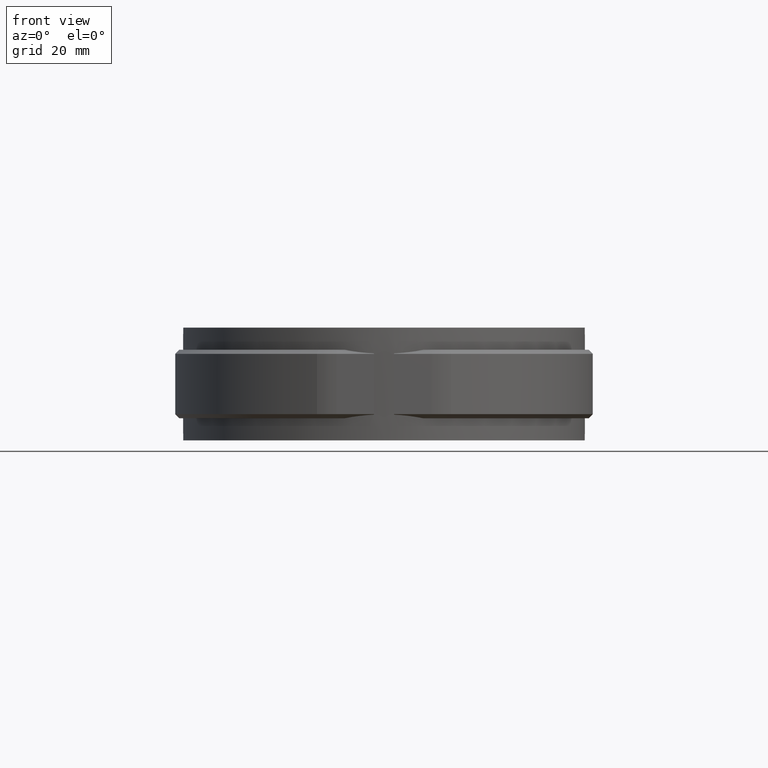
[diagram: clean part render]
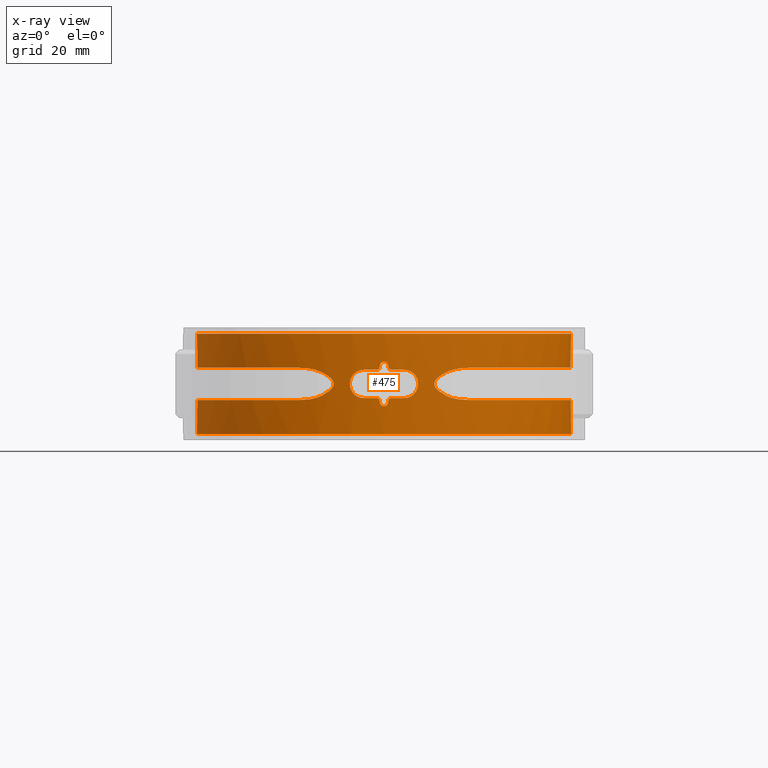
[diagram: x-ray — body ghosted, one internal face saturated and labeled with its STEP entity id]
A machine part, front view, then the same camera in x-ray: the body is ghosted and one INTERNAL B-rep face — a face not visible from any outside direction — is saturated and labeled: STEP entity #475.
In plain terms, the highlighted cylindrical surface (partial cylindrical patch) has radius 46.5 mm, axis along (0, 0, 1).
Its self-contained STEP definition (entity closure, byte-faithful):
#475 = ADVANCED_FACE( '', ( #871, #872 ), #873, .F. );
#871 = FACE_OUTER_BOUND( '', #1761, .T. );
#872 = FACE_BOUND( '', #1762, .T. );
#873 = CYLINDRICAL_SURFACE( '', #1763, 46.5000000000000 );
#1761 = EDGE_LOOP( '', ( #3415, #3416, #3417, #3418, #3419, #3420, #3421, #3422, #3423, #3424, #3425, #3426, #3427, #3428, #3429, #3430 ) );
#1762 = EDGE_LOOP( '', ( #3431, #3432, #3433, #3434, #3435, #3436, #3437, #3438, #3439, #3440, #3441, #3442, #3443, #3444, #3445, #3446 ) );
#1763 = AXIS2_PLACEMENT_3D( '', #3447, #3448, #3449 );
#3415 = ORIENTED_EDGE( '', *, *, #7668, .F. );
#3416 = ORIENTED_EDGE( '', *, *, #7669, .F. );
#3417 = ORIENTED_EDGE( '', *, *, #7670, .T. );
#3418 = ORIENTED_EDGE( '', *, *, #7651, .T. );
#3419 = ORIENTED_EDGE( '', *, *, #7671, .T. );
#3420 = ORIENTED_EDGE( '', *, *, #7672, .T. );
#3421 = ORIENTED_EDGE( '', *, *, #7673, .T. );
#3422 = ORIENTED_EDGE( '', *, *, #7674, .T. );
#3423 = ORIENTED_EDGE( '', *, *, #7675, .T. );
#3424 = ORIENTED_EDGE( '', *, *, #7649, .T. );
#3425 = ORIENTED_EDGE( '', *, *, #7602, .F. );
#3426 = ORIENTED_EDGE( '', *, *, #7676, .F. );
#3427 = ORIENTED_EDGE( '', *, *, #7677, .F. );
#3428 = ORIENTED_EDGE( '', *, *, #7678, .F. );
#3429 = ORIENTED_EDGE( '', *, *, #7679, .F. );
#3430 = ORIENTED_EDGE( '', *, *, #7680, .F. );
#3431 = ORIENTED_EDGE( '', *, *, #7681, .F. );
#3432 = ORIENTED_EDGE( '', *, *, #7682, .F. );
#3433 = ORIENTED_EDGE( '', *, *, #7683, .F. );
#3434 = ORIENTED_EDGE( '', *, *, #7684, .F. );
#3435 = ORIENTED_EDGE( '', *, *, #7685, .F. );
#3436 = ORIENTED_EDGE( '', *, *, #7686, .F. );
#3437 = ORIENTED_EDGE( '', *, *, #7658, .F. );
#3438 = ORIENTED_EDGE( '', *, *, #7653, .F. );
#3439 = ORIENTED_EDGE( '', *, *, #7656, .F. );
#3440 = ORIENTED_EDGE( '', *, *, #7665, .F. );
#3441 = ORIENTED_EDGE( '', *, *, #7660, .F. );
#3442 = ORIENTED_EDGE( '', *, *, #7663, .F. );
#3443 = ORIENTED_EDGE( '', *, *, #7666, .F. );
#3444 = ORIENTED_EDGE( '', *, *, #7687, .F. );
#3445 = ORIENTED_EDGE( '', *, *, #7688, .F. );
#3446 = ORIENTED_EDGE( '', *, *, #7689, .F. );
#3447 = CARTESIAN_POINT( '', ( 0.000000000000000, 0.000000000000000, -12.5000000000000 ) );
#3448 = DIRECTION( '', ( 0.000000000000000, 0.000000000000000, 1.00000000000000 ) );
#3449 = DIRECTION( '', ( -1.00000000000000, 6.16283340149655E-017, 0.000000000000000 ) );
#7602 = EDGE_CURVE( '', #8615, #8617, #8618, .T. );
#7649 = EDGE_CURVE( '', #8704, #8617, #8705, .T. );
#7651 = EDGE_CURVE( '', #8708, #8706, #8709, .T. );
#7653 = EDGE_CURVE( '', #8711, #8712, #8713, .T. );
#7656 = EDGE_CURVE( '', #8716, #8711, #8717, .T. );
#7658 = EDGE_CURVE( '', #8712, #8719, #8720, .F. );
#7660 = EDGE_CURVE( '', #8722, #8723, #8724, .F. );
#7663 = EDGE_CURVE( '', #8727, #8722, #8728, .T. );
#7665 = EDGE_CURVE( '', #8723, #8716, #8730, .T. );
#7666 = EDGE_CURVE( '', #8731, #8727, #8732, .T. );
#7668 = EDGE_CURVE( '', #8734, #8735, #8736, .T. );
#7669 = EDGE_CURVE( '', #8737, #8734, #8738, .T. );
#7670 = EDGE_CURVE( '', #8737, #8708, #8739, .T. );
#7671 = EDGE_CURVE( '', #8706, #8740, #8741, .T. );
#7672 = EDGE_CURVE( '', #8740, #8742, #8743, .T. );
#7673 = EDGE_CURVE( '', #8742, #8744, #8745, .T. );
#7674 = EDGE_CURVE( '', #8744, #8746, #8747, .T. );
#7675 = EDGE_CURVE( '', #8746, #8704, #8748, .T. );
#7676 = EDGE_CURVE( '', #8749, #8615, #8750, .T. );
#7677 = EDGE_CURVE( '', #8751, #8749, #8752, .T. );
#7678 = EDGE_CURVE( '', #8753, #8751, #8754, .T. );
#7679 = EDGE_CURVE( '', #8755, #8753, #8756, .T. );
#7680 = EDGE_CURVE( '', #8735, #8755, #8757, .T. );
#7681 = EDGE_CURVE( '', #8758, #8759, #8760, .T. );
#7682 = EDGE_CURVE( '', #8761, #8758, #8762, .T. );
#7683 = EDGE_CURVE( '', #8763, #8761, #8764, .F. );
#7684 = EDGE_CURVE( '', #8765, #8763, #8766, .T. );
#7685 = EDGE_CURVE( '', #8767, #8765, #8768, .T. );
#7686 = EDGE_CURVE( '', #8719, #8767, #8769, .T. );
#7687 = EDGE_CURVE( '', #8770, #8731, #8771, .T. );
#7688 = EDGE_CURVE( '', #8772, #8770, #8773, .F. );
#7689 = EDGE_CURVE( '', #8759, #8772, #8774, .T. );
#8615 = VERTEX_POINT( '', #10290 );
#8617 = VERTEX_POINT( '', #10292 );
#8618 = CIRCLE( '', #10293, 46.5000000000000 );
#8704 = VERTEX_POINT( '', #10850 );
#8705 = LINE( '', #10851, #10852 );
#8706 = VERTEX_POINT( '', #10853 );
#8708 = VERTEX_POINT( '', #10886 );
#8709 = LINE( '', #10887, #10888 );
#8711 = VERTEX_POINT( '', #10890 );
#8712 = VERTEX_POINT( '', #10891 );
#8713 = ELLIPSE( '', #10892, 211.833441394427, 46.5000000000000 );
#8716 = VERTEX_POINT( '', #10897 );
#8717 = B_SPLINE_CURVE_WITH_KNOTS( '', 3, ( #10898, #10899, #10900, #10901, #10902, #10903, #10904, #10905, #10906, #10907 ), .UNSPECIFIED., .F., .F., ( 4, 2, 2, 2, 4 ), ( 1.08420217248550E-019, 0.000671567837454007, 0.00134313567490801, 0.00201470351236202, 0.00268627134981603 ), .UNSPECIFIED. );
#8719 = VERTEX_POINT( '', #10910 );
#8720 = B_SPLINE_CURVE_WITH_KNOTS( '', 3, ( #10911, #10912, #10913, #10914, #10915, #10916 ), .UNSPECIFIED., .F., .F., ( 4, 2, 4 ), ( 0.000671855508561978, 0.00100772632349601, 0.00134359713843005 ), .UNSPECIFIED. );
#8722 = VERTEX_POINT( '', #10919 );
#8723 = VERTEX_POINT( '', #10920 );
#8724 = B_SPLINE_CURVE_WITH_KNOTS( '', 3, ( #10921, #10922, #10923, #10924, #10925, #10926 ), .UNSPECIFIED., .F., .F., ( 4, 2, 4 ), ( 5.44594392808031E-011, 0.000335865367463993, 0.000671730680468546 ), .UNSPECIFIED. );
#8727 = VERTEX_POINT( '', #10931 );
#8728 = CIRCLE( '', #10932, 46.5000000000000 );
#8730 = ELLIPSE( '', #10935, 211.833549455614, 46.5000000000000 );
#8731 = VERTEX_POINT( '', #10936 );
#8732 = B_SPLINE_CURVE_WITH_KNOTS( '', 3, ( #10937, #10938, #10939, #10940, #10941, #10942, #10943, #10944, #10945, #10946, #10947, #10948, #10949, #10950, #10951, #10952, #10953, #10954, #10955, #10956, #10957, #10958, #10959, #10960, #10961, #10962, #10963, #10964, #10965, #10966, #10967, #10968, #10969, #10970 ), .UNSPECIFIED., .F., .F., ( 4, 2, 2, 2, 2, 2, 2, 2, 2, 2, 2, 2, 2, 2, 2, 2, 4 ), ( 4.42269442734662E-018, 0.000687142138066847, 0.00137428427613369, 0.00206142641420053, 0.00274856855226737, 0.00343571069033422, 0.00412285282840106, 0.00480999496646790, 0.00549713710453475, 0.00618427924260159, 0.00687142138066844, 0.00755856351873528, 0.00824570565680212, 0.00893284779486896, 0.00961998993293581, 0.0103071320710027, 0.0109942742090695 ), .UNSPECIFIED. );
#8734 = VERTEX_POINT( '', #10973 );
#8735 = VERTEX_POINT( '', #10974 );
#8736 = B_SPLINE_CURVE_WITH_KNOTS( '', 3, ( #10975, #10976, #10977, #10978, #10979, #10980, #10981, #10982, #10983, #10984, #10985, #10986, #10987, #10988, #10989, #10990, #10991, #10992, #10993, #10994, #10995, #10996, #10997, #10998, #10999, #11000, #11001, #11002, #11003, #11004, #11005, #11006, #11007, #11008, #11009, #11010, #11011, #11012, #11013, #11014, #11015, #11016, #11017, #11018, #11019, #11020, #11021, #11022, #11023, #11024, #11025, #11026, #11027, #11028, #11029, #11030 ), .UNSPECIFIED., .F., .F., ( 4, 2, 2, 2, 2, 2, 2, 2, 2, 2, 2, 2, 2, 2, 2, 2, 2, 2, 2, 2, 2, 2, 2, 2, 2, 2, 2, 4 ), ( 2.60930321732885E-017, 0.00738281492453087, 0.00922851865566358, 0.0110742223867963, 0.0147656298490617, 0.0221484447735926, 0.0258398522358580, 0.0295312596981235, 0.0369140746226543, 0.0406054820849198, 0.0424511858160525, 0.0442968895471852, 0.0516797044717162, 0.0553711119339817, 0.0590625193962471, 0.0664453343207781, 0.0701367417830436, 0.0719824455141763, 0.0738281492453090, 0.0812109641698400, 0.0885937790943709, 0.0922851865566364, 0.0959765940189019, 0.103359408943433, 0.105205112674566, 0.107050816405698, 0.110742223867964, 0.118125038792495 ), .UNSPECIFIED. );
#8737 = VERTEX_POINT( '', #11031 );
#8738 = LINE( '', #11032, #11033 );
#8739 = CIRCLE( '', #11034, 46.5000000000000 );
#8740 = VERTEX_POINT( '', #11035 );
#8741 = B_SPLINE_CURVE_WITH_KNOTS( '', 3, ( #11036, #11037, #11038, #11039, #11040, #11041, #11042, #11043, #11044, #11045, #11046, #11047, #11048, #11049, #11050, #11051, #11052, #11053, #11054, #11055, #11056, #11057, #11058, #11059, #11060, #11061, #11062, #11063, #11064, #11065, #11066, #11067, #11068, #11069, #11070, #11071, #11072, #11073, #11074, #11075, #11076, #11077, #11078, #11079, #11080, #11081, #11082, #11083, #11084, #11085, #11086, #11087, #11088, #11089, #11090, #11091 ), .UNSPECIFIED., .F., .F., ( 4, 2, 2, 2, 2, 2, 2, 2, 2, 2, 2, 2, 2, 2, 2, 2, 2, 2, 2, 2, 2, 2, 2, 2, 2, 2, 2, 4 ), ( 1.27123987728551E-016, 0.00738276158582449, 0.00922845198228058, 0.0110741423787367, 0.0147655231716488, 0.0221482847574732, 0.0258396655503854, 0.0295310463432975, 0.0369138079291218, 0.0406051887220340, 0.0424508791184901, 0.0442965695149462, 0.0516793311007705, 0.0553707118936826, 0.0590620926865948, 0.0664448542724191, 0.0701362350653312, 0.0719819254617873, 0.0738276158582434, 0.0812103774440677, 0.0885931390298920, 0.0922845198228042, 0.0959759006157163, 0.103358662201541, 0.105204352597997, 0.107050042994453, 0.110741423787365, 0.118124185373189 ), .UNSPECIFIED. );
#8742 = VERTEX_POINT( '', #11092 );
#8743 = B_SPLINE_CURVE_WITH_KNOTS( '', 3, ( #11093, #11094, #11095, #11096, #11097, #11098, #11099, #11100, #11101, #11102 ), .UNSPECIFIED., .F., .F., ( 4, 2, 2, 2, 4 ), ( 0.000000000000000, 0.00149796902133167, 0.00299593804266334, 0.00449390706399502, 0.00599187608532669 ), .UNSPECIFIED. );
#8744 = VERTEX_POINT( '', #11103 );
#8745 = B_SPLINE_CURVE_WITH_KNOTS( '', 3, ( #11104, #11105, #11106, #11107, #11108, #11109, #11110, #11111, #11112, #11113, #11114, #11115, #11116, #11117, #11118, #11119, #11120, #11121, #11122, #11123, #11124, #11125, #11126, #11127, #11128, #11129, #11130, #11131, #11132, #11133 ), .UNSPECIFIED., .F., .F., ( 4, 2, 2, 2, 2, 2, 2, 2, 2, 2, 2, 2, 2, 2, 4 ), ( 4.33680868994202E-018, 0.00111899603695362, 0.00223799207390723, 0.00279749009238404, 0.00335698811086084, 0.00391648612933765, 0.00419623513857605, 0.00447598414781445, 0.00475573315705285, 0.00503548216629125, 0.00559498018476805, 0.00615447820324485, 0.00671397622172165, 0.00783297225867525, 0.00895196829562885 ), .UNSPECIFIED. );
#8746 = VERTEX_POINT( '', #11134 );
#8747 = B_SPLINE_CURVE_WITH_KNOTS( '', 3, ( #11135, #11136, #11137, #11138, #11139, #11140, #11141, #11142, #11143, #11144 ), .UNSPECIFIED., .F., .F., ( 4, 2, 2, 2, 4 ), ( 0.000000000000000, 0.00149665212957565, 0.00299330425915131, 0.00448995638872696, 0.00598660851830262 ), .UNSPECIFIED. );
#8748 = B_SPLINE_CURVE_WITH_KNOTS( '', 3, ( #11145, #11146, #11147, #11148, #11149, #11150, #11151, #11152, #11153, #11154, #11155, #11156, #11157, #11158, #11159, #11160, #11161, #11162, #11163, #11164, #11165, #11166, #11167, #11168, #11169, #11170, #11171, #11172, #11173, #11174, #11175, #11176, #11177, #11178, #11179, #11180, #11181, #11182, #11183, #11184, #11185, #11186, #11187, #11188, #11189, #11190, #11191, #11192, #11193, #11194, #11195, #11196, #11197, #11198, #11199, #11200 ), .UNSPECIFIED., .F., .F., ( 4, 2, 2, 2, 2, 2, 2, 2, 2, 2, 2, 2, 2, 2, 2, 2, 2, 2, 2, 2, 2, 2, 2, 2, 2, 2, 2, 4 ), ( 0.000000000000000, 0.00738276103454595, 0.00922845129318243, 0.0110741415518189, 0.0147655220690919, 0.0221482831036379, 0.0258396636209108, 0.0295310441381838, 0.0369138051727298, 0.0406051856900028, 0.0424508759486393, 0.0442965662072758, 0.0516793272418217, 0.0553707077590947, 0.0590620882763677, 0.0664448493109137, 0.0701362298281866, 0.0719819200868231, 0.0738276103454596, 0.0812103713800056, 0.0885931324145516, 0.0922845129318246, 0.0959758934490976, 0.103358654483644, 0.105204344742280, 0.107050035000917, 0.110741415518190, 0.118124176552736 ), .UNSPECIFIED. );
#8749 = VERTEX_POINT( '', #11201 );
#8750 = LINE( '', #11202, #11203 );
#8751 = VERTEX_POINT( '', #11204 );
#8752 = B_SPLINE_CURVE_WITH_KNOTS( '', 3, ( #11205, #11206, #11207, #11208, #11209, #11210, #11211, #11212, #11213, #11214, #11215, #11216, #11217, #11218, #11219, #11220, #11221, #11222, #11223, #11224, #11225, #11226, #11227, #11228, #11229, #11230, #11231, #11232, #11233, #11234, #11235, #11236, #11237, #11238, #11239, #11240, #11241, #11242, #11243, #11244, #11245, #11246, #11247, #11248, #11249, #11250, #11251, #11252, #11253, #11254, #11255, #11256, #11257, #11258, #11259, #11260 ), .UNSPECIFIED., .F., .F., ( 4, 2, 2, 2, 2, 2, 2, 2, 2, 2, 2, 2, 2, 2, 2, 2, 2, 2, 2, 2, 2, 2, 2, 2, 2, 2, 2, 4 ), ( 4.04603565571184E-017, 0.00738277436989267, 0.00922846796236583, 0.0110741615548390, 0.0147655487397853, 0.0221483231096779, 0.0258397102946242, 0.0295310974795706, 0.0369138718494632, 0.0406052590344095, 0.0424509526268827, 0.0442966462193558, 0.0516794205892485, 0.0553708077741948, 0.0590621949591411, 0.0664449693290337, 0.0701363565139800, 0.0719820501064532, 0.0738277436989263, 0.0812105180688190, 0.0885932924387116, 0.0922846796236579, 0.0959760668086042, 0.103358841178497, 0.105204534770970, 0.107050228363443, 0.110741615548389, 0.118124389918282 ), .UNSPECIFIED. );
#8753 = VERTEX_POINT( '', #11261 );
#8754 = B_SPLINE_CURVE_WITH_KNOTS( '', 3, ( #11262, #11263, #11264, #11265, #11266, #11267, #11268, #11269, #11270, #11271 ), .UNSPECIFIED., .F., .F., ( 4, 2, 2, 2, 4 ), ( 0.000000000000000, 0.00149635626450207, 0.00299271252900415, 0.00448906879350622, 0.00598542505800829 ), .UNSPECIFIED. );
#8755 = VERTEX_POINT( '', #11272 );
#8756 = B_SPLINE_CURVE_WITH_KNOTS( '', 3, ( #11273, #11274, #11275, #11276, #11277, #11278, #11279, #11280, #11281, #11282, #11283, #11284, #11285, #11286, #11287, #11288, #11289, #11290, #11291, #11292, #11293, #11294, #11295, #11296, #11297, #11298, #11299, #11300, #11301, #11302 ), .UNSPECIFIED., .F., .F., ( 4, 2, 2, 2, 2, 2, 2, 2, 2, 2, 2, 2, 2, 2, 4 ), ( 0.000000000000000, 0.00111931711138644, 0.00223863422277289, 0.00279829277846611, 0.00335795133415932, 0.00391760988985254, 0.00419743916769915, 0.00447726844554576, 0.00475709772339237, 0.00503692700123898, 0.00559658555693220, 0.00615624411262541, 0.00671590266831863, 0.00783521977970507, 0.00895453689109151 ), .UNSPECIFIED. );
#8757 = B_SPLINE_CURVE_WITH_KNOTS( '', 3, ( #11303, #11304, #11305, #11306, #11307, #11308, #11309, #11310, #11311, #11312 ), .UNSPECIFIED., .F., .F., ( 4, 2, 2, 2, 4 ), ( 3.46944695195361E-018, 0.00149740317680330, 0.00299480635360661, 0.00449220953040991, 0.00598961270721321 ), .UNSPECIFIED. );
#8758 = VERTEX_POINT( '', #11313 );
#8759 = VERTEX_POINT( '', #11314 );
#8760 = B_SPLINE_CURVE_WITH_KNOTS( '', 3, ( #11315, #11316, #11317, #11318, #11319, #11320, #11321, #11322, #11323, #11324 ), .UNSPECIFIED., .F., .F., ( 4, 2, 2, 2, 4 ), ( 1.08420217248550E-019, 0.000671567837454002, 0.00134313567490800, 0.00201470351236201, 0.00268627134981601 ), .UNSPECIFIED. );
#8761 = VERTEX_POINT( '', #11325 );
#8762 = ELLIPSE( '', #11326, 211.833549455568, 46.5000000000000 );
#8763 = VERTEX_POINT( '', #11327 );
#8764 = B_SPLINE_CURVE_WITH_KNOTS( '', 3, ( #11328, #11329, #11330, #11331, #11332, #11333 ), .UNSPECIFIED., .F., .F., ( 4, 2, 4 ), ( 0.00156373278591128, 0.00189959779974501, 0.00223546281357875 ), .UNSPECIFIED. );
#8765 = VERTEX_POINT( '', #11334 );
#8766 = CIRCLE( '', #11335, 46.5000000000000 );
#8767 = VERTEX_POINT( '', #11336 );
#8768 = B_SPLINE_CURVE_WITH_KNOTS( '', 3, ( #11337, #11338, #11339, #11340, #11341, #11342, #11343, #11344, #11345, #11346, #11347, #11348, #11349, #11350, #11351, #11352, #11353, #11354, #11355, #11356, #11357, #11358, #11359, #11360, #11361, #11362, #11363, #11364, #11365, #11366, #11367, #11368, #11369, #11370 ), .UNSPECIFIED., .F., .F., ( 4, 2, 2, 2, 2, 2, 2, 2, 2, 2, 2, 2, 2, 2, 2, 2, 4 ), ( 1.78811203067275E-018, 0.000687142138066849, 0.00137428427613370, 0.00206142641420054, 0.00274856855226739, 0.00343571069033424, 0.00412285282840109, 0.00480999496646793, 0.00549713710453478, 0.00618427924260163, 0.00687142138066848, 0.00755856351873533, 0.00824570565680217, 0.00893284779486902, 0.00961998993293587, 0.0103071320710027, 0.0109942742090696 ), .UNSPECIFIED. );
#8769 = CIRCLE( '', #11371, 46.5000000000000 );
#8770 = VERTEX_POINT( '', #11372 );
#8771 = CIRCLE( '', #11373, 46.5000000000000 );
#8772 = VERTEX_POINT( '', #11374 );
#8773 = B_SPLINE_CURVE_WITH_KNOTS( '', 3, ( #11375, #11376, #11377, #11378, #11379, #11380 ), .UNSPECIFIED., .F., .F., ( 4, 2, 4 ), ( 0.00223559787351831, 0.00257146803799823, 0.00290733820247816 ), .UNSPECIFIED. );
#8774 = ELLIPSE( '', #11381, 211.833441394412, 46.5000000000000 );
#10290 = CARTESIAN_POINT( '', ( 6.57575757575756, 46.0326993810364, 12.5000000000000 ) );
#10292 = CARTESIAN_POINT( '', ( -6.57575757575755, 46.0326993810364, 12.5000000000000 ) );
#10293 = AXIS2_PLACEMENT_3D( '', #14658, #14659, #14660 );
#10850 = CARTESIAN_POINT( '', ( -6.57575757575753, 46.0326993810364, 3.99548083261022 ) );
#10851 = CARTESIAN_POINT( '', ( -6.57575757575753, 46.0326993810364, -12.5000000000000 ) );
#10852 = VECTOR( '', #14714, 1000.00000000000 );
#10853 = CARTESIAN_POINT( '', ( -6.57575757575739, 46.0326993810364, -3.99548083260763 ) );
#10886 = CARTESIAN_POINT( '', ( -6.57575757575755, 46.0326993810364, -12.5000000000000 ) );
#10887 = CARTESIAN_POINT( '', ( -6.57575757575753, 46.0326993810364, -12.5000000000000 ) );
#10888 = VECTOR( '', #14715, 1000.00000000000 );
#10890 = CARTESIAN_POINT( '', ( 0.975609757981828, -46.4897643100084, 4.71951218674745 ) );
#10891 = CARTESIAN_POINT( '', ( 1.16219499999999, -46.4854741051651, 3.89024400000000 ) );
#10892 = AXIS2_PLACEMENT_3D( '', #14719, #14720, #14721 );
#10897 = CARTESIAN_POINT( '', ( -0.975610000000002, -46.4897643049295, 4.71951200000000 ) );
#10898 = CARTESIAN_POINT( '', ( -0.975610000000001, -46.4897643049295, 4.71951200000000 ) );
#10899 = CARTESIAN_POINT( '', ( -0.925763808986531, -46.4908103511537, 4.94105073461265 ) );
#10900 = CARTESIAN_POINT( '', ( -0.802006509600707, -46.4934213540496, 5.13901837185373 ) );
#10901 = CARTESIAN_POINT( '', ( -0.447391385286102, -46.4981858204705, 5.42271324366220 ) );
#10902 = CARTESIAN_POINT( '', ( -0.227079159237838, -46.5000000006669, 5.50000005715017 ) );
#10903 = CARTESIAN_POINT( '', ( 0.227079432346515, -46.4999999993331, 5.49999994971700 ) );
#10904 = CARTESIAN_POINT( '', ( 0.447400224408896, -46.4981857168814, 5.42270756787861 ) );
#10905 = CARTESIAN_POINT( '', ( 0.802005625356060, -46.4934213507598, 5.13901736363283 ) );
#10906 = CARTESIAN_POINT( '', ( 0.925763524349837, -46.4908103568673, 4.94105091276290 ) );
#10907 = CARTESIAN_POINT( '', ( 0.975609757981827, -46.4897643100084, 4.71951218674745 ) );
#10910 = CARTESIAN_POINT( '', ( 1.64999999892706, -46.4707165858623, 3.49999999999999 ) );
#10911 = CARTESIAN_POINT( '', ( 1.64999999892705, -46.4707165858623, 3.49999999999999 ) );
#10912 = CARTESIAN_POINT( '', ( 1.53650901613434, -46.4747462229165, 3.49999999975644 ) );
#10913 = CARTESIAN_POINT( '', ( 1.42636351351477, -46.4782030087271, 3.53861432713445 ) );
#10914 = CARTESIAN_POINT( '', ( 1.24903577308870, -46.4833064382330, 3.68044133338710 ) );
#10915 = CARTESIAN_POINT( '', ( 1.18712329770316, -46.4848508665404, 3.77945156354335 ) );
#10916 = CARTESIAN_POINT( '', ( 1.16219499999999, -46.4854741051651, 3.89024400000000 ) );
#10919 = CARTESIAN_POINT( '', ( -1.65000000000002, -46.4707165858242, 3.50000000000000 ) );
#10920 = CARTESIAN_POINT( '', ( -1.16219510888263, -46.4854741024429, 3.89024396052175 ) );
#10921 = CARTESIAN_POINT( '', ( -1.16219509675616, -46.4854741027461, 3.89024401441720 ) );
#10922 = CARTESIAN_POINT( '', ( -1.18712410211090, -46.4848508463773, 3.77944831630140 ) );
#10923 = CARTESIAN_POINT( '', ( -1.24903564416893, -46.4833064381437, 3.68044224278561 ) );
#10924 = CARTESIAN_POINT( '', ( -1.42635966188042, -46.4782031233753, 3.53861667346047 ) );
#10925 = CARTESIAN_POINT( '', ( -1.53651254375999, -46.4747460976664, 3.50000000000001 ) );
#10926 = CARTESIAN_POINT( '', ( -1.65000000000002, -46.4707165858242, 3.50000000000001 ) );
#10931 = CARTESIAN_POINT( '', ( -4.99999999999995, -46.2304012528553, 3.50000000000000 ) );
#10932 = AXIS2_PLACEMENT_3D( '', #14728, #14729, #14730 );
#10935 = AXIS2_PLACEMENT_3D( '', #14732, #14733, #14734 );
#10936 = CARTESIAN_POINT( '', ( -4.99999999999995, -46.2304012528553, -3.49999999999999 ) );
#10937 = CARTESIAN_POINT( '', ( -4.99999999999996, -46.2304012528552, -3.49999999999999 ) );
#10938 = CARTESIAN_POINT( '', ( -5.23101385738080, -46.2054161942012, -3.49999999999999 ) );
#10939 = CARTESIAN_POINT( '', ( -5.45798571758385, -46.1791179024730, -3.47735425239128 ) );
#10940 = CARTESIAN_POINT( '', ( -5.90423219293596, -46.1241865029157, -3.38882098308433 ) );
#10941 = CARTESIAN_POINT( '', ( -6.12575133543462, -46.0952352981939, -3.32190071304826 ) );
#10942 = CARTESIAN_POINT( '', ( -6.54860201801553, -46.0370650479490, -3.14708948178815 ) );
#10943 = CARTESIAN_POINT( '', ( -6.74912385589546, -46.0080010893712, -3.04015286593942 ) );
#10944 = CARTESIAN_POINT( '', ( -7.12868562455497, -45.9507201067411, -2.78759057670871 ) );
#10945 = CARTESIAN_POINT( '', ( -7.30867678819304, -45.9223259867691, -2.64045333686759 ) );
#10946 = CARTESIAN_POINT( '', ( -7.63172027521371, -45.8697463048386, -2.31862690606866 ) );
#10947 = CARTESIAN_POINT( '', ( -7.77678357822314, -45.8452676755266, -2.14297085075285 ) );
#10948 = CARTESIAN_POINT( '', ( -8.03323438727723, -45.8010270227893, -1.76134614976869 ) );
#10949 = CARTESIAN_POINT( '', ( -8.14288594457704, -45.7815615739906, -1.55706978496352 ) );
#10950 = CARTESIAN_POINT( '', ( -8.31863462380287, -45.7499539852790, -1.13528085052246 ) );
#10951 = CARTESIAN_POINT( '', ( -8.38623678321872, -45.7375466786688, -0.914928350754904 ) );
#10952 = CARTESIAN_POINT( '', ( -8.47729911745199, -45.7207561534240, -0.460526097855708 ) );
#10953 = CARTESIAN_POINT( '', ( -8.49980270042236, -45.7165544862432, -0.232270415757349 ) );
#10954 = CARTESIAN_POINT( '', ( -8.50019474131339, -45.7164815947105, 0.226285794520531 ) );
#10955 = CARTESIAN_POINT( '', ( -8.47736440232366, -45.7207434989937, 0.459166104156033 ) );
#10956 = CARTESIAN_POINT( '', ( -8.38737612003103, -45.7373372107700, 0.910263543814192 ) );
#10957 = CARTESIAN_POINT( '', ( -8.32081009890212, -45.7495588395359, 1.12918788445466 ) );
#10958 = CARTESIAN_POINT( '', ( -8.14458879543814, -45.7812591358884, 1.55383599487668 ) );
#10959 = CARTESIAN_POINT( '', ( -8.03449376747116, -45.8008027773279, 1.75895861128939 ) );
#10960 = CARTESIAN_POINT( '', ( -7.78037265749609, -45.8446553750566, 2.13813369705887 ) );
#10961 = CARTESIAN_POINT( '', ( -7.63546354454568, -45.8691302098569, 2.31465216576983 ) );
#10962 = CARTESIAN_POINT( '', ( -7.30864861419778, -45.9223373227352, 2.64072420356518 ) );
#10963 = CARTESIAN_POINT( '', ( -7.13209424810787, -45.9501886017669, 2.78494136457533 ) );
#10964 = CARTESIAN_POINT( '', ( -6.75375610242144, -46.0073187592023, 3.03744363242463 ) );
#10965 = CARTESIAN_POINT( '', ( -6.54961183431967, -46.0369208358938, 3.14658533698890 ) );
#10966 = CARTESIAN_POINT( '', ( -6.12700118973033, -46.0950686261736, 3.32147022241109 ) );
#10967 = CARTESIAN_POINT( '', ( -5.90947972749181, -46.1235174520899, 3.38746186619657 ) );
#10968 = CARTESIAN_POINT( '', ( -5.46202872177194, -46.1786428454260, 3.47686363406913 ) );
#10969 = CARTESIAN_POINT( '', ( -5.23101169307605, -46.2054164282793, 3.49999999999999 ) );
#10970 = CARTESIAN_POINT( '', ( -4.99999999999996, -46.2304012528552, 3.49999999999999 ) );
#10973 = CARTESIAN_POINT( '', ( 6.57575757575759, 46.0326993810364, -3.99548083260761 ) );
#10974 = CARTESIAN_POINT( '', ( 20.9197939615486, -41.5284729459034, -3.99747853378867 ) );
#10975 = CARTESIAN_POINT( '', ( 6.57575757575761, 46.0326993810364, -3.99548083260761 ) );
#10976 = CARTESIAN_POINT( '', ( 9.02644560647744, 45.6826193162018, -3.99398102181866 ) );
#10977 = CARTESIAN_POINT( '', ( 11.4281199175665, 45.1411077177509, -3.99298772306722 ) );
#10978 = CARTESIAN_POINT( '', ( 14.3697969989177, 44.2282534686498, -3.99378475511837 ) );
#10979 = CARTESIAN_POINT( '', ( 14.9550935991822, 44.0338139849090, -3.99402548694760 ) );
#10980 = CARTESIAN_POINT( '', ( 16.1195579707052, 43.6209978043481, -3.99462222141533 ) );
#10981 = CARTESIAN_POINT( '', ( 16.6994045729644, 43.4023079986853, -3.99497875479192 ) );
#10982 = CARTESIAN_POINT( '', ( 18.4174429841433, 42.7149810340934, -3.99609124759805 ) );
#10983 = CARTESIAN_POINT( '', ( 19.5378352994174, 42.2139655870495, -3.99690456822734 ) );
#10984 = CARTESIAN_POINT( '', ( 22.8260172442110, 40.5857922413008, -3.99805969679736 ) );
#10985 = CARTESIAN_POINT( '', ( 24.9212545755722, 39.3342662662554, -3.99627866648189 ) );
#10986 = CARTESIAN_POINT( '', ( 27.9180614666933, 37.2066217496728, -3.99468673434178 ) );
#10987 = CARTESIAN_POINT( '', ( 28.8925482019642, 36.4554901388768, -3.99432573404381 ) );
#10988 = CARTESIAN_POINT( '', ( 30.7910723894444, 34.8667744991785, -3.99423936775725 ) );
#10989 = CARTESIAN_POINT( '', ( 31.7022275853344, 34.0399709080273, -3.99451484170614 ) );
#10990 = CARTESIAN_POINT( '', ( 34.3248524586362, 31.4651857909592, -3.99595643506852 ) );
#10991 = CARTESIAN_POINT( '', ( 35.9261464892723, 29.6233961994894, -3.99787806846360 ) );
#10992 = CARTESIAN_POINT( '', ( 38.1084952908390, 26.6737415384165, -3.99719068524409 ) );
#10993 = CARTESIAN_POINT( '', ( 38.7991789354904, 25.6592192141062, -3.99649297409394 ) );
#10994 = CARTESIAN_POINT( '', ( 39.7786160376878, 24.0892540422622, -3.99547777132636 ) );
#10995 = CARTESIAN_POINT( '', ( 40.0961987557810, 23.5568583089422, -3.99514113652332 ) );
#10996 = CARTESIAN_POINT( '', ( 40.7071462935750, 22.4846385046358, -3.99456056532969 ) );
#10997 = CARTESIAN_POINT( '', ( 41.0010355076973, 21.9440625218567, -3.99431605826919 ) );
#10998 = CARTESIAN_POINT( '', ( 42.4134545626993, 19.2191975567037, -3.99344634064606 ) );
#10999 = CARTESIAN_POINT( '', ( 43.3619633462340, 16.9693621125594, -3.99417587506434 ) );
#11000 = CARTESIAN_POINT( '', ( 44.5166103326422, 13.4912446953023, -3.99614859686555 ) );
#11001 = CARTESIAN_POINT( '', ( 44.8565991811639, 12.3145648632108, -3.99689418603296 ) );
#11002 = CARTESIAN_POINT( '', ( 45.4449135023530, 9.92586694619043, -3.99764279258482 ) );
#11003 = CARTESIAN_POINT( '', ( 45.6937109079561, 8.70917143220113, -3.99744717810590 ) );
#11004 = CARTESIAN_POINT( '', ( 46.2888220258071, 5.06502613660511, -3.99582113165904 ) );
#11005 = CARTESIAN_POINT( '', ( 46.4897309576794, 2.62960273250128, -3.99406502112676 ) );
#11006 = CARTESIAN_POINT( '', ( 46.5045624322486, -1.03230167447569, -3.99376585088792 ) );
#11007 = CARTESIAN_POINT( '', ( 46.4615245746229, -2.25440494880702, -3.99399589850282 ) );
#11008 = CARTESIAN_POINT( '', ( 46.3238595087267, -4.08979731571435, -3.99471718962194 ) );
#11009 = CARTESIAN_POINT( '', ( 46.2657722206098, -4.70196811540099, -3.99501657941568 ) );
#11010 = CARTESIAN_POINT( '', ( 46.1248311875601, -5.92706767691072, -3.99566724076215 ) );
#11011 = CARTESIAN_POINT( '', ( 46.0417452325320, -6.54130755607098, -3.99601921706423 ) );
#11012 = CARTESIAN_POINT( '', ( 45.5671047439563, -9.59088644814693, -3.99765040980327 ) );
#11013 = CARTESIAN_POINT( '', ( 44.9989396884292, -11.9708526744581, -3.99744953912443 ) );
#11014 = CARTESIAN_POINT( '', ( 43.4986371818152, -16.6154882612960, -3.99502574217584 ) );
#11015 = CARTESIAN_POINT( '', ( 42.5665123704989, -18.8801617460656, -3.99395023361140 ) );
#11016 = CARTESIAN_POINT( '', ( 40.8841096541552, -22.1871403863447, -3.99452969353004 ) );
#11017 = CARTESIAN_POINT( '', ( 40.2814307134500, -23.2628140712428, -3.99502872758893 ) );
#11018 = CARTESIAN_POINT( '', ( 39.0000419825077, -25.3524930568636, -3.99621810238712 ) );
#11019 = CARTESIAN_POINT( '', ( 38.3204896122507, -26.3681501939337, -3.99690751831176 ) );
#11020 = CARTESIAN_POINT( '', ( 36.1667580706722, -29.3287007170031, -3.99798996325518 ) );
#11021 = CARTESIAN_POINT( '', ( 34.5782379916716, -31.1877240831995, -3.99621132313939 ) );
#11022 = CARTESIAN_POINT( '', ( 32.3958395119032, -33.3637452869902, -3.99455562030085 ) );
#11023 = CARTESIAN_POINT( '', ( 31.9484914393014, -33.7923872796728, -3.99426198195349 ) );
#11024 = CARTESIAN_POINT( '', ( 31.0396010949044, -34.6291020267017, -3.99381864401047 ) );
#11025 = CARTESIAN_POINT( '', ( 30.5780230629542, -35.0373037603408, -3.99366862363824 ) );
#11026 = CARTESIAN_POINT( '', ( 29.1721752948108, -36.2318476688763, -3.99347498235339 ) );
#11027 = CARTESIAN_POINT( '', ( 28.2068247381588, -36.9881753185528, -3.99370371571822 ) );
#11028 = CARTESIAN_POINT( '', ( 25.2274622178838, -39.1385417570212, -3.99520651827584 ) );
#11029 = CARTESIAN_POINT( '', ( 23.1306761385684, -40.4147281187776, -3.99755827887396 ) );
#11030 = CARTESIAN_POINT( '', ( 20.9197850379012, -41.5284552321418, -3.99749244984471 ) );
#11031 = CARTESIAN_POINT( '', ( 6.57575757575756, 46.0326993810364, -12.5000000000000 ) );
#11032 = CARTESIAN_POINT( '', ( 6.57575757575756, 46.0326993810364, -12.5000000000000 ) );
#11033 = VECTOR( '', #14736, 1000.00000000000 );
#11034 = AXIS2_PLACEMENT_3D( '', #14737, #14738, #14739 );
#11035 = CARTESIAN_POINT( '', ( -20.9205327764170, -41.5280715557311, -3.99749981218512 ) );
#11036 = CARTESIAN_POINT( '', ( -6.57575757575728, 46.0326993810365, -3.99548083260761 ) );
#11037 = CARTESIAN_POINT( '', ( -9.02642790096353, 45.6826218454293, -3.99398103265436 ) );
#11038 = CARTESIAN_POINT( '', ( -11.4280852103041, 45.1411155248829, -3.99298773233475 ) );
#11039 = CARTESIAN_POINT( '', ( -14.3697419174203, 44.2282713021551, -3.99378473552675 ) );
#11040 = CARTESIAN_POINT( '', ( -14.9550344872541, 44.0338339971647, -3.99402546083240 ) );
#11041 = CARTESIAN_POINT( '', ( -16.1194908888248, 43.6210225291649, -3.99462218286242 ) );
#11042 = CARTESIAN_POINT( '', ( -16.6993336943579, 43.4023352086789, -3.99497871041075 ) );
#11043 = CARTESIAN_POINT( '', ( -18.4173613192817, 42.7150159972254, -3.99609119168670 ) );
#11044 = CARTESIAN_POINT( '', ( -19.5377467847736, 42.2140063035712, -3.99690451185011 ) );
#11045 = CARTESIAN_POINT( '', ( -22.8259091993308, 40.5858519649327, -3.99805970940279 ) );
#11046 = CARTESIAN_POINT( '', ( -24.9211348561333, 39.3343409679004, -3.99627875394242 ) );
#11047 = CARTESIAN_POINT( '', ( -27.9179264666233, 37.2067227430525, -3.99468679412401 ) );
#11048 = CARTESIAN_POINT( '', ( -28.8924071778545, 36.4556016313970, -3.99432577052609 ) );
#11049 = CARTESIAN_POINT( '', ( -30.7909253708948, 34.8669040444092, -3.99423934438297 ) );
#11050 = CARTESIAN_POINT( '', ( -31.7020780410302, 34.0401098810381, -3.99451478333704 ) );
#11051 = CARTESIAN_POINT( '', ( -34.3246968011483, 31.4653542938914, -3.99595630185005 ) );
#11052 = CARTESIAN_POINT( '', ( -35.9259886889988, 29.6235860345991, -3.99787797465348 ) );
#11053 = CARTESIAN_POINT( '', ( -38.1083376875090, 26.6739662761769, -3.99719080662992 ) );
#11054 = CARTESIAN_POINT( '', ( -38.7990219707479, 25.6594560739052, -3.99649313124594 ) );
#11055 = CARTESIAN_POINT( '', ( -39.7784610060242, 24.0895099154388, -3.99547793479051 ) );
#11056 = CARTESIAN_POINT( '', ( -40.0960448299570, 23.5571202039745, -3.99514129390926 ) );
#11057 = CARTESIAN_POINT( '', ( -40.7069956570267, 22.4849111158847, -3.99456069736878 ) );
#11058 = CARTESIAN_POINT( '', ( -41.0008866484203, 21.9443405423459, -3.99431617151323 ) );
#11059 = CARTESIAN_POINT( '', ( -42.4133152836251, 19.2195028908839, -3.99344634011011 ) );
#11060 = CARTESIAN_POINT( '', ( -43.3618339257840, 16.9696901436927, -3.99417571254173 ) );
#11061 = CARTESIAN_POINT( '', ( -44.5164998589826, 13.4916083752181, -3.99614837883075 ) );
#11062 = CARTESIAN_POINT( '', ( -44.8564957210682, 12.3149406951398, -3.99689398215429 ) );
#11063 = CARTESIAN_POINT( '', ( -45.4448256911626, 9.92626770739505, -3.99764275305489 ) );
#11064 = CARTESIAN_POINT( '', ( -45.6936321567366, 8.70958355395388, -3.99744730465632 ) );
#11065 = CARTESIAN_POINT( '', ( -46.2887731460312, 5.06546563201284, -3.99582144241865 ) );
#11066 = CARTESIAN_POINT( '', ( -46.4897040992828, 2.63006054152066, -3.99406521971057 ) );
#11067 = CARTESIAN_POINT( '', ( -46.5045729646552, -1.03181626163645, -3.99376580997790 ) );
#11068 = CARTESIAN_POINT( '', ( -46.4615483013307, -2.25391031233101, -3.99399576726955 ) );
#11069 = CARTESIAN_POINT( '', ( -46.3239043328841, -4.08928880381759, -3.99471695822427 ) );
#11070 = CARTESIAN_POINT( '', ( -46.2658242954534, -4.70145497168666, -3.99501632064457 ) );
#11071 = CARTESIAN_POINT( '', ( -46.1248982430340, -5.92654525489607, -3.99566694954664 ) );
#11072 = CARTESIAN_POINT( '', ( -46.0418199917243, -6.54078101540862, -3.99601892119921 ) );
#11073 = CARTESIAN_POINT( '', ( -45.5672171891992, -9.59034872683213, -3.99765017904233 ) );
#11074 = CARTESIAN_POINT( '', ( -44.9990840013220, -11.9703065531392, -3.99744979318649 ) );
#11075 = CARTESIAN_POINT( '', ( -43.4988505573148, -16.6149270274221, -3.99502606597822 ) );
#11076 = CARTESIAN_POINT( '', ( -42.5667629124961, -18.8795937906458, -3.99395033577253 ) );
#11077 = CARTESIAN_POINT( '', ( -40.8844219521688, -22.1865642512338, -3.99452949177695 ) );
#11078 = CARTESIAN_POINT( '', ( -40.2817591842037, -23.2622449089651, -3.99502843764572 ) );
#11079 = CARTESIAN_POINT( '', ( -39.0004078289120, -25.3519299138624, -3.99621774787878 ) );
#11080 = CARTESIAN_POINT( '', ( -38.3208745505478, -26.3675903640257, -3.99690718768025 ) );
#11081 = CARTESIAN_POINT( '', ( -36.1672018687935, -29.3281520160702, -3.99799001442096 ) );
#11082 = CARTESIAN_POINT( '', ( -34.5787231073654, -31.1871843619293, -3.99621183399877 ) );
#11083 = CARTESIAN_POINT( '', ( -32.3963804492614, -33.3632199254923, -3.99455599501142 ) );
#11084 = CARTESIAN_POINT( '', ( -31.9490437365300, -33.7918650546563, -3.99426231210436 ) );
#11085 = CARTESIAN_POINT( '', ( -31.0401715961202, -34.6285905984379, -3.99381886161251 ) );
#11086 = CARTESIAN_POINT( '', ( -30.5786026376258, -35.0367978849432, -3.99366877473359 ) );
#11087 = CARTESIAN_POINT( '', ( -29.1727820230101, -36.2313589344730, -3.99347492352862 ) );
#11088 = CARTESIAN_POINT( '', ( -28.2074494794085, -36.9876986535157, -3.99370350281785 ) );
#11089 = CARTESIAN_POINT( '', ( -25.2281408826577, -39.1381034143386, -3.99520597161046 ) );
#11090 = CARTESIAN_POINT( '', ( -23.1313905869037, -40.4143181125874, -3.99755767299865 ) );
#11091 = CARTESIAN_POINT( '', ( -20.9205355883105, -41.5280771370194, -3.99749247208582 ) );
#11092 = CARTESIAN_POINT( '', ( -15.5378942503452, -43.8272049347389, -2.93627589504009 ) );
#11093 = CARTESIAN_POINT( '', ( -20.9205355992077, -41.5280771315297, -3.99749693339119 ) );
#11094 = CARTESIAN_POINT( '', ( -20.4737403133480, -41.7531585060846, -3.99534284652037 ) );
#11095 = CARTESIAN_POINT( '', ( -20.0244285692098, -41.9704684429976, -3.97614467361617 ) );
#11096 = CARTESIAN_POINT( '', ( -19.1210373325114, -42.3896672807979, -3.90059377205582 ) );
#11097 = CARTESIAN_POINT( '', ( -18.6660753970500, -42.5919114308632, -3.84412739386391 ) );
#11098 = CARTESIAN_POINT( '', ( -17.7583975434916, -42.9782806397623, -3.68507336971235 ) );
#11099 = CARTESIAN_POINT( '', ( -17.3039101045871, -43.1631345812079, -3.58234843944174 ) );
#11100 = CARTESIAN_POINT( '', ( -16.4070822802653, -43.5119425311225, -3.31387638862515 ) );
#11101 = CARTESIAN_POINT( '', ( -15.9659233781107, -43.6754567890819, -3.14887277242897 ) );
#11102 = CARTESIAN_POINT( '', ( -15.5378955056756, -43.8272039178260, -2.93627264184029 ) );
#11103 = CARTESIAN_POINT( '', ( -15.5382917472009, -43.8270176722669, 2.93653662284807 ) );
#11104 = CARTESIAN_POINT( '', ( -15.5378943699673, -43.8272043204645, -2.93627520925843 ) );
#11105 = CARTESIAN_POINT( '', ( -15.2172978036021, -43.9408642187124, -2.77854455027797 ) );
#11106 = CARTESIAN_POINT( '', ( -14.9019072664328, -44.0487015666941, -2.60937056373351 ) );
#11107 = CARTESIAN_POINT( '', ( -14.2867269029578, -44.2520551419858, -2.23944688069061 ) );
#11108 = CARTESIAN_POINT( '', ( -13.9865992380929, -44.3476552594994, -2.03928406073661 ) );
#11109 = CARTESIAN_POINT( '', ( -13.5578069076597, -44.4798633447791, -1.69875218612171 ) );
#11110 = CARTESIAN_POINT( '', ( -13.4188185681433, -44.5219484036449, -1.57847811268521 ) );
#11111 = CARTESIAN_POINT( '', ( -13.1575600324365, -44.5998564506031, -1.32290130061076 ) );
#11112 = CARTESIAN_POINT( '', ( -13.0345678743915, -44.6358967130493, -1.18732130929592 ) );
#11113 = CARTESIAN_POINT( '', ( -12.8135460813344, -44.6998464412535, -0.891071922121131 ) );
#11114 = CARTESIAN_POINT( '', ( -12.7151356096423, -44.7278519592881, -0.729085379643023 ) );
#11115 = CARTESIAN_POINT( '', ( -12.6089200105952, -44.7578651164497, -0.468774221334719 ) );
#11116 = CARTESIAN_POINT( '', ( -12.5800418534117, -44.7659799170847, -0.377663720705280 ) );
#11117 = CARTESIAN_POINT( '', ( -12.5410042147113, -44.7769318316587, -0.193964012664823 ) );
#11118 = CARTESIAN_POINT( '', ( -12.5305460630474, -44.7798550202070, -0.101079656473842 ) );
#11119 = CARTESIAN_POINT( '', ( -12.5295472992158, -44.7801344878018, 0.0869618150170852 ) );
#11120 = CARTESIAN_POINT( '', ( -12.5393950489134, -44.7773821807729, 0.182699515633698 ) );
#11121 = CARTESIAN_POINT( '', ( -12.5770890396309, -44.7668092948884, 0.367047247144952 ) );
#11122 = CARTESIAN_POINT( '', ( -12.6047838709714, -44.7590299008313, 0.456859609685698 ) );
#11123 = CARTESIAN_POINT( '', ( -12.7102338241638, -44.7292442650749, 0.720317175744705 ) );
#11124 = CARTESIAN_POINT( '', ( -12.8061056406087, -44.7019780820608, 0.879644423459606 ) );
#11125 = CARTESIAN_POINT( '', ( -13.0267294712930, -44.6381843874639, 1.17817271001521 ) );
#11126 = CARTESIAN_POINT( '', ( -13.1515703571214, -44.6016231869007, 1.31654776190881 ) );
#11127 = CARTESIAN_POINT( '', ( -13.4129260392394, -44.5237241123257, 1.57318593198574 ) );
#11128 = CARTESIAN_POINT( '', ( -13.5506142747854, -44.4820531245804, 1.69266857904839 ) );
#11129 = CARTESIAN_POINT( '', ( -13.9777595838409, -44.3504343453858, 2.03297740699812 ) );
#11130 = CARTESIAN_POINT( '', ( -14.2814269449236, -44.2537790753045, 2.23609503130267 ) );
#11131 = CARTESIAN_POINT( '', ( -14.9000380527852, -44.0493471467467, 2.60840950814404 ) );
#11132 = CARTESIAN_POINT( '', ( -15.2167533120457, -43.9410608288332, 2.77828963785889 ) );
#11133 = CARTESIAN_POINT( '', ( -15.5383273193289, -43.8270508261438, 2.93648820775708 ) );
#11134 = CARTESIAN_POINT( '', ( -20.9205327869074, -41.5280715672337, 3.99750069139619 ) );
#11135 = CARTESIAN_POINT( '', ( -15.5383278812718, -43.8270506269146, 2.93648739288677 ) );
#11136 = CARTESIAN_POINT( '', ( -15.9662111530950, -43.6753500110302, 3.14899870506016 ) );
#11137 = CARTESIAN_POINT( '', ( -16.4076443508844, -43.5117374762984, 3.31410186511931 ) );
#11138 = CARTESIAN_POINT( '', ( -17.3056236550802, -43.1624545323843, 3.58280404179587 ) );
#11139 = CARTESIAN_POINT( '', ( -17.7593861793805, -42.9778765709776, 3.68529280743439 ) );
#11140 = CARTESIAN_POINT( '', ( -18.6677641634558, -42.5911757663035, 3.84437698579890 ) );
#11141 = CARTESIAN_POINT( '', ( -19.1220948274604, -42.3891851687019, 3.90070040929309 ) );
#11142 = CARTESIAN_POINT( '', ( -20.0246940431474, -41.9703366478662, 3.97614865000628 ) );
#11143 = CARTESIAN_POINT( '', ( -20.4737909468019, -41.7531329986435, 3.99534309082103 ) );
#11144 = CARTESIAN_POINT( '', ( -20.9205356063336, -41.5280771279399, 3.99749693342820 ) );
#11145 = CARTESIAN_POINT( '', ( -20.9205355920764, -41.5280771351223, 3.99749247208856 ) );
#11146 = CARTESIAN_POINT( '', ( -23.1313907603467, -40.4143180249610, 3.99755767300325 ) );
#11147 = CARTESIAN_POINT( '', ( -25.2347114173065, -39.1347771160723, 3.99519702192825 ) );
#11148 = CARTESIAN_POINT( '', ( -27.7313133758831, -37.3310021759868, 3.99394505907874 ) );
#11149 = CARTESIAN_POINT( '', ( -28.2239667720026, -36.9599687848992, 3.99375961566586 ) );
#11150 = CARTESIAN_POINT( '', ( -29.1958272681117, -36.1971720312294, 3.99355696432620 ) );
#11151 = CARTESIAN_POINT( '', ( -29.6755779326837, -35.8048952196013, 3.99354014358097 ) );
#11152 = CARTESIAN_POINT( '', ( -31.0844791593482, -34.6053022627125, 3.99374723421439 ) );
#11153 = CARTESIAN_POINT( '', ( -31.9864293910340, -33.7729804980717, 3.99424242965525 ) );
#11154 = CARTESIAN_POINT( '', ( -34.5831757136941, -31.1807226535677, 3.99622033215030 ) );
#11155 = CARTESIAN_POINT( '', ( -36.1695291835020, -29.3260719671162, 3.99799383372442 ) );
#11156 = CARTESIAN_POINT( '', ( -38.3307628929493, -26.3534333747743, 3.99689970209367 ) );
#11157 = CARTESIAN_POINT( '', ( -39.0146272847098, -25.3306324829062, 3.99620367183894 ) );
#11158 = CARTESIAN_POINT( '', ( -40.3069648851809, -23.2191874511940, 3.99500594732824 ) );
#11159 = CARTESIAN_POINT( '', ( -40.9066662253374, -22.1448750692827, 3.99451674271569 ) );
#11160 = CARTESIAN_POINT( '', ( -42.5706114876529, -18.8678661111554, 3.99395941840040 ) );
#11161 = CARTESIAN_POINT( '', ( -43.5005076144511, -16.6114221864844, 3.99502840645669 ) );
#11162 = CARTESIAN_POINT( '', ( -44.6275826601695, -13.1196319823720, 3.99684977728421 ) );
#11163 = CARTESIAN_POINT( '', ( -44.9584422228069, -11.9377662702889, 3.99743645851464 ) );
#11164 = CARTESIAN_POINT( '', ( -45.3857283617113, -10.1373620204338, 3.99751729688027 ) );
#11165 = CARTESIAN_POINT( '', ( -45.5168307915554, -9.53146569191149, 3.99738815184591 ) );
#11166 = CARTESIAN_POINT( '', ( -45.7537141309683, -8.32035857188851, 3.99695136228677 ) );
#11167 = CARTESIAN_POINT( '', ( -45.8597518834930, -7.71426893186476, 3.99664771622245 ) );
#11168 = CARTESIAN_POINT( '', ( -46.3288802458635, -4.68118175926669, 3.99501967676545 ) );
#11169 = CARTESIAN_POINT( '', ( -46.5099246259014, -2.24631633575470, 3.99366379899964 ) );
#11170 = CARTESIAN_POINT( '', ( -46.4944128711885, 1.41838930138676, 3.99396750957804 ) );
#11171 = CARTESIAN_POINT( '', ( -46.4411737747573, 2.64203535896090, 3.99439948108832 ) );
#11172 = CARTESIAN_POINT( '', ( -46.2365496579135, 5.09356929338416, 3.99560971300625 ) );
#11173 = CARTESIAN_POINT( '', ( -46.0841193200955, 6.32604243030930, 3.99639004287568 ) );
#11174 = CARTESIAN_POINT( '', ( -45.4853513969795, 9.96956737520643, 3.99799674496267 ) );
#11175 = CARTESIAN_POINT( '', ( -44.8986677595160, 12.3417760897591, 3.99680001933674 ) );
#11176 = CARTESIAN_POINT( '', ( -43.7442952550102, 15.8169713772828, 3.99482975755816 ) );
#11177 = CARTESIAN_POINT( '', ( -43.3135631717428, 16.9614511934550, 3.99425862356495 ) );
#11178 = CARTESIAN_POINT( '', ( -42.5974659206088, 18.6569636449155, 3.99387065217141 ) );
#11179 = CARTESIAN_POINT( '', ( -42.3470867012787, 19.2185957913613, 3.99381592569267 ) );
#11180 = CARTESIAN_POINT( '', ( -41.8226151139432, 20.3346758348472, 3.99386852993187 ) );
#11181 = CARTESIAN_POINT( '', ( -41.5478840718160, 20.8902928137148, 3.99397646274835 ) );
#11182 = CARTESIAN_POINT( '', ( -40.1250076319549, 23.6290041588835, 3.99486747603843 ) );
#11183 = CARTESIAN_POINT( '', ( -38.8271553478886, 25.7032645544257, 3.99696960607868 ) );
#11184 = CARTESIAN_POINT( '', ( -35.9232997568883, 29.6263790521323, 3.99787366382674 ) );
#11185 = CARTESIAN_POINT( '', ( -34.3173071082534, 31.4752410042605, 3.99594420105859 ) );
#11186 = CARTESIAN_POINT( '', ( -31.6676939860457, 34.0725218976491, 3.99449999088256 ) );
#11187 = CARTESIAN_POINT( '', ( -30.7532971387937, 34.8996687174204, 3.99423516914425 ) );
#11188 = CARTESIAN_POINT( '', ( -28.8721331883869, 36.4712501382209, 3.99433276580521 ) );
#11189 = CARTESIAN_POINT( '', ( -27.9040366785754, 37.2169851628625, 3.99469324585624 ) );
#11190 = CARTESIAN_POINT( '', ( -24.9182656555415, 39.3355694887960, 3.99628214613289 ) );
#11191 = CARTESIAN_POINT( '', ( -22.8196290336468, 40.5905541508099, 3.99807037243229 ) );
#11192 = CARTESIAN_POINT( '', ( -20.0570211051492, 41.9564752345397, 3.99708363707627 ) );
#11193 = CARTESIAN_POINT( '', ( -19.4962933360433, 42.2199725964713, 3.99677410994880 ) );
#11194 = CARTESIAN_POINT( '', ( -18.3679423587914, 42.7229473865738, 3.99607740139071 ) );
#11195 = CARTESIAN_POINT( '', ( -17.8002473585489, 42.9625341386062, 3.99569072203304 ) );
#11196 = CARTESIAN_POINT( '', ( -16.0867443924916, 43.6460678343003, 3.99458387326141 ) );
#11197 = CARTESIAN_POINT( '', ( -14.9305346680599, 44.0548430232118, 3.99393292210299 ) );
#11198 = CARTESIAN_POINT( '', ( -11.4207980428296, 45.1421710727430, 3.99299336455827 ) );
#11199 = CARTESIAN_POINT( '', ( -9.02642845611004, 45.6826217661267, 3.99398103231723 ) );
#11200 = CARTESIAN_POINT( '', ( -6.57575757575754, 46.0326993810364, 3.99548083261022 ) );
#11201 = CARTESIAN_POINT( '', ( 6.57575757575757, 46.0326993810364, 3.99548083261022 ) );
#11202 = CARTESIAN_POINT( '', ( 6.57575757575756, 46.0326993810364, -12.5000000000000 ) );
#11203 = VECTOR( '', #14740, 1000.00000000000 );
#11204 = CARTESIAN_POINT( '', ( 20.9203482817925, -41.5281723292438, 3.99749725963920 ) );
#11205 = CARTESIAN_POINT( '', ( 20.9203479469530, -41.5281716642856, 3.99749246654827 ) );
#11206 = CARTESIAN_POINT( '', ( 23.1312121412199, -40.4144205321283, 3.99755782448424 ) );
#11207 = CARTESIAN_POINT( '', ( 25.2345421871742, -39.1348865202369, 3.99519715811862 ) );
#11208 = CARTESIAN_POINT( '', ( 27.7311563237600, -37.3311188600602, 3.99394512500596 ) );
#11209 = CARTESIAN_POINT( '', ( 28.2238121775604, -36.9600868572699, 3.99375966488406 ) );
#11210 = CARTESIAN_POINT( '', ( 29.1956776328347, -36.1972927425621, 3.99355697855100 ) );
#11211 = CARTESIAN_POINT( '', ( 29.6754307712588, -35.8050172069677, 3.99354013951036 ) );
#11212 = CARTESIAN_POINT( '', ( 31.0843393554863, -34.6054279187105, 3.99374717855253 ) );
#11213 = CARTESIAN_POINT( '', ( 31.9862945120349, -33.7731083198935, 3.99424234408454 ) );
#11214 = CARTESIAN_POINT( '', ( 34.5830556590268, -31.1808561472617, 3.99622020638116 ) );
#11215 = CARTESIAN_POINT( '', ( 36.1694190803681, -29.3262081485695, 3.99799382160875 ) );
#11216 = CARTESIAN_POINT( '', ( 38.3306677448712, -26.3535718732475, 3.99689978418702 ) );
#11217 = CARTESIAN_POINT( '', ( 39.0145373479581, -25.3307711031767, 3.99620375919553 ) );
#11218 = CARTESIAN_POINT( '', ( 40.3068844692026, -23.2193271552623, 3.99500601785324 ) );
#11219 = CARTESIAN_POINT( '', ( 40.9065905100116, -22.1450150477822, 3.99451679095279 ) );
#11220 = CARTESIAN_POINT( '', ( 42.5705496722618, -18.8680061236622, 3.99395939335551 ) );
#11221 = CARTESIAN_POINT( '', ( 43.5004548007782, -16.6115611753145, 3.99502832613225 ) );
#11222 = CARTESIAN_POINT( '', ( 44.6275427931828, -13.1197678097434, 3.99684971034712 ) );
#11223 = CARTESIAN_POINT( '', ( 44.9584065777559, -11.9379007713901, 3.99743641157310 ) );
#11224 = CARTESIAN_POINT( '', ( 45.3856988769981, -10.1374941014058, 3.99751731139766 ) );
#11225 = CARTESIAN_POINT( '', ( 45.5168033022059, -9.53159702655133, 3.99738818677487 ) );
#11226 = CARTESIAN_POINT( '', ( 45.7536904797646, -8.32048870020000, 3.99695142165259 ) );
#11227 = CARTESIAN_POINT( '', ( 45.8597301182797, -7.71439839943169, 3.99664778245933 ) );
#11228 = CARTESIAN_POINT( '', ( 46.3288677367893, -4.68130763918404, 3.99501975735541 ) );
#11229 = CARTESIAN_POINT( '', ( 46.5099189722381, -2.24643844241143, 3.99366382864513 ) );
#11230 = CARTESIAN_POINT( '', ( 46.4944164434154, 1.41827419992908, 3.99396748015800 ) );
#11231 = CARTESIAN_POINT( '', ( 46.4411802448282, 2.64192281784647, 3.99439943457450 ) );
#11232 = CARTESIAN_POINT( '', ( 46.2365615087021, 5.09346233519849, 3.99560965116220 ) );
#11233 = CARTESIAN_POINT( '', ( 46.0841336868529, 6.32593813007519, 3.99638998262618 ) );
#11234 = CARTESIAN_POINT( '', ( 45.4853729655538, 9.96946988347632, 3.99799673048097 ) );
#11235 = CARTESIAN_POINT( '', ( 44.8986933682173, 12.3416838314710, 3.99680007749323 ) );
#11236 = CARTESIAN_POINT( '', ( 43.7443255049516, 15.8168878926651, 3.99482980196461 ) );
#11237 = CARTESIAN_POINT( '', ( 43.3135947309599, 16.9613707879846, 3.99425865517052 ) );
#11238 = CARTESIAN_POINT( '', ( 42.5974990352888, 18.6568880797390, 3.99387066285959 ) );
#11239 = CARTESIAN_POINT( '', ( 42.3471202662241, 19.2185218765675, 3.99381592910637 ) );
#11240 = CARTESIAN_POINT( '', ( 41.8226494322343, 20.3346052932085, 3.99386851971039 ) );
#11241 = CARTESIAN_POINT( '', ( 41.5479187466545, 20.8902238750304, 3.99397644617595 ) );
#11242 = CARTESIAN_POINT( '', ( 40.1250448603940, 23.6289412922232, 3.99486743216262 ) );
#11243 = CARTESIAN_POINT( '', ( 38.8271937280570, 25.7032070001756, 3.99696955911636 ) );
#11244 = CARTESIAN_POINT( '', ( 35.9233382944186, 29.6263326902724, 3.99787368684134 ) );
#11245 = CARTESIAN_POINT( '', ( 34.3173446574679, 31.4752005267448, 3.99594423279317 ) );
#11246 = CARTESIAN_POINT( '', ( 31.6677279861810, 34.0724904039580, 3.99450000378107 ) );
#11247 = CARTESIAN_POINT( '', ( 30.7533316003492, 34.8996384133981, 3.99423517433392 ) );
#11248 = CARTESIAN_POINT( '', ( 28.8721663755181, 36.4712239264241, 3.99433275710610 ) );
#11249 = CARTESIAN_POINT( '', ( 27.9040689759759, 37.2169610173676, 3.99469323149831 ) );
#11250 = CARTESIAN_POINT( '', ( 24.9182944673387, 39.3355515021223, 3.99628212514187 ) );
#11251 = CARTESIAN_POINT( '', ( 22.8196544426861, 40.5905402231161, 3.99807037053683 ) );
#11252 = CARTESIAN_POINT( '', ( 20.0570406053303, 41.9564659341875, 3.99708364678390 ) );
#11253 = CARTESIAN_POINT( '', ( 19.4963115849681, 42.2199641806178, 3.99677412043274 ) );
#11254 = CARTESIAN_POINT( '', ( 18.3679594284073, 42.7229400587927, 3.99607741271442 ) );
#11255 = CARTESIAN_POINT( '', ( 17.8002638038236, 42.9625273364354, 3.99569073299812 ) );
#11256 = CARTESIAN_POINT( '', ( 16.0867588598919, 43.6460625470658, 3.99458388192245 ) );
#11257 = CARTESIAN_POINT( '', ( 14.9305476772747, 44.0548386636239, 3.99393292766525 ) );
#11258 = CARTESIAN_POINT( '', ( 11.4208062454942, 45.1421691901054, 3.99299336259479 ) );
#11259 = CARTESIAN_POINT( '', ( 9.02643288268098, 45.6826211337923, 3.99398102960818 ) );
#11260 = CARTESIAN_POINT( '', ( 6.57575757575756, 46.0326993810364, 3.99548083261021 ) );
#11261 = CARTESIAN_POINT( '', ( 15.5393717074799, -43.8269559477339, 2.93662353918504 ) );
#11262 = CARTESIAN_POINT( '', ( 15.5391622374068, -43.8267548075323, 2.93690174990734 ) );
#11263 = CARTESIAN_POINT( '', ( 15.9669721293682, -43.6750710393147, 3.14934383387613 ) );
#11264 = CARTESIAN_POINT( '', ( 16.4083396424837, -43.5114743051253, 3.31434060932294 ) );
#11265 = CARTESIAN_POINT( '', ( 17.3061489534080, -43.1622429263255, 3.58293049272771 ) );
#11266 = CARTESIAN_POINT( '', ( 17.7598234195502, -42.9776947777782, 3.68538134592827 ) );
#11267 = CARTESIAN_POINT( '', ( 18.6680198521719, -42.5910625730844, 3.84440979076424 ) );
#11268 = CARTESIAN_POINT( '', ( 19.1222612844457, -42.3891089325117, 3.90071645689964 ) );
#11269 = CARTESIAN_POINT( '', ( 20.0246826173319, -41.9703409421234, 3.97614556108387 ) );
#11270 = CARTESIAN_POINT( '', ( 20.4736910935830, -41.7531807704786, 3.99533775530413 ) );
#11271 = CARTESIAN_POINT( '', ( 20.9203479515882, -41.5281716619512, 3.99749602768880 ) );
#11272 = CARTESIAN_POINT( '', ( 15.5392338422774, -43.8269019162111, -2.93669943425323 ) );
#11273 = CARTESIAN_POINT( '', ( 15.5391047131696, -43.8267752032151, -2.93687061905789 ) );
#11274 = CARTESIAN_POINT( '', ( 15.2184075001859, -43.9404807530911, -2.77912662904324 ) );
#11275 = CARTESIAN_POINT( '', ( 14.9029153395774, -44.0483613335116, -2.60993558679035 ) );
#11276 = CARTESIAN_POINT( '', ( 14.2875284629768, -44.2517971635711, -2.23996991546597 ) );
#11277 = CARTESIAN_POINT( '', ( 13.9872959363095, -44.3474362928507, -2.03978230812285 ) );
#11278 = CARTESIAN_POINT( '', ( 13.5583422405516, -44.4797003590139, -1.69920476679967 ) );
#11279 = CARTESIAN_POINT( '', ( 13.4193054599785, -44.5218018234845, -1.57891929805409 ) );
#11280 = CARTESIAN_POINT( '', ( 13.1579407329750, -44.5997443076231, -1.32330872324286 ) );
#11281 = CARTESIAN_POINT( '', ( 13.0348925697990, -44.6358020506385, -1.18770801086597 ) );
#11282 = CARTESIAN_POINT( '', ( 12.8137546264785, -44.6997868158494, -0.891399839495578 ) );
#11283 = CARTESIAN_POINT( '', ( 12.7152976731588, -44.7278059725612, -0.729398504838527 ) );
#11284 = CARTESIAN_POINT( '', ( 12.6090079004242, -44.7578403777044, -0.469031548395888 ) );
#11285 = CARTESIAN_POINT( '', ( 12.5801074842981, -44.7659614819351, -0.377901004276654 ) );
#11286 = CARTESIAN_POINT( '', ( 12.5410343396603, -44.7769234026864, -0.194177152828195 ) );
#11287 = CARTESIAN_POINT( '', ( 12.5305585323116, -44.7798515311279, -0.101272123802540 ) );
#11288 = CARTESIAN_POINT( '', ( 12.5295365669264, -44.7801374908519, 0.0868309561112120 ) );
#11289 = CARTESIAN_POINT( '', ( 12.5393790242816, -44.7773866675565, 0.182592562081522 ) );
#11290 = CARTESIAN_POINT( '', ( 12.5770698090402, -44.7668146969269, 0.366981753382383 ) );
#11291 = CARTESIAN_POINT( '', ( 12.6047686590091, -44.7590341942723, 0.456820046130751 ) );
#11292 = CARTESIAN_POINT( '', ( 12.7102523511752, -44.7292390386217, 0.720366579185410 ) );
#11293 = CARTESIAN_POINT( '', ( 12.8061398224707, -44.7019683980193, 0.879704612320931 ) );
#11294 = CARTESIAN_POINT( '', ( 13.0268445348249, -44.6381509168524, 1.17831445714359 ) );
#11295 = CARTESIAN_POINT( '', ( 13.1517156886678, -44.6015804537148, 1.31670542923238 ) );
#11296 = CARTESIAN_POINT( '', ( 13.4131466627101, -44.5236577689814, 1.57338759317651 ) );
#11297 = CARTESIAN_POINT( '', ( 13.5508782254929, -44.4819728845048, 1.69289348616454 ) );
#11298 = CARTESIAN_POINT( '', ( 13.9781666974149, -44.3503067103163, 2.03327247590443 ) );
#11299 = CARTESIAN_POINT( '', ( 14.2819243736932, -44.2536191944860, 2.23642093952715 ) );
#11300 = CARTESIAN_POINT( '', ( 14.9007006534178, -44.0491236651049, 2.60878172017426 ) );
#11301 = CARTESIAN_POINT( '', ( 15.2175017393656, -43.9408023887983, 2.77868288871494 ) );
#11302 = CARTESIAN_POINT( '', ( 15.5391642150723, -43.8267541063336, 2.93689988658836 ) );
#11303 = CARTESIAN_POINT( '', ( 20.9197849809450, -41.5284552608332, -3.99749329820338 ) );
#11304 = CARTESIAN_POINT( '', ( 20.4731544018824, -41.7534435398631, -3.99532059444041 ) );
#11305 = CARTESIAN_POINT( '', ( 20.0240100520645, -41.9706658777809, -3.97611651452170 ) );
#11306 = CARTESIAN_POINT( '', ( 19.1209589874418, -42.3897004022211, -3.90058037463710 ) );
#11307 = CARTESIAN_POINT( '', ( 18.6661699193479, -42.5918678829845, -3.84413482550814 ) );
#11308 = CARTESIAN_POINT( '', ( 17.7588318647366, -42.9780990740585, -3.68515860295317 ) );
#11309 = CARTESIAN_POINT( '', ( 17.3045173032265, -43.1628892700238, -3.58249158026739 ) );
#11310 = CARTESIAN_POINT( '', ( 16.4080105791888, -43.5115906175266, -3.31419284425857 ) );
#11311 = CARTESIAN_POINT( '', ( 15.9669859459961, -43.6750667893318, -3.14935301464493 ) );
#11312 = CARTESIAN_POINT( '', ( 15.5391031976445, -43.8267757405557, -2.93687243174522 ) );
#11313 = CARTESIAN_POINT( '', ( 0.975609999999995, -46.4897643049295, -4.71951200000000 ) );
#11314 = CARTESIAN_POINT( '', ( -0.975609757981835, -46.4897643100084, -4.71951218674743 ) );
#11315 = CARTESIAN_POINT( '', ( 0.975609999999993, -46.4897643049295, -4.71951200000000 ) );
#11316 = CARTESIAN_POINT( '', ( 0.925763808986519, -46.4908103511537, -4.94105073461265 ) );
#11317 = CARTESIAN_POINT( '', ( 0.802006509600693, -46.4934213540496, -5.13901837185372 ) );
#11318 = CARTESIAN_POINT( '', ( 0.447391385286086, -46.4981858204705, -5.42271324366219 ) );
#11319 = CARTESIAN_POINT( '', ( 0.227079159237823, -46.5000000006669, -5.50000005715015 ) );
#11320 = CARTESIAN_POINT( '', ( -0.227079432346527, -46.4999999993331, -5.49999994971698 ) );
#11321 = CARTESIAN_POINT( '', ( -0.447400224408905, -46.4981857168814, -5.42270756787859 ) );
#11322 = CARTESIAN_POINT( '', ( -0.802005625356066, -46.4934213507598, -5.13901736363281 ) );
#11323 = CARTESIAN_POINT( '', ( -0.925763524349841, -46.4908103568673, -4.94105091276288 ) );
#11324 = CARTESIAN_POINT( '', ( -0.975609757981831, -46.4897643100084, -4.71951218674743 ) );
#11325 = CARTESIAN_POINT( '', ( 1.16219512100790, -46.4854741021397, -3.89024390662615 ) );
#11326 = AXIS2_PLACEMENT_3D( '', #14741, #14742, #14743 );
#11327 = CARTESIAN_POINT( '', ( 1.64999999999988, -46.4707165858243, -3.49999999999873 ) );
#11328 = CARTESIAN_POINT( '', ( 1.16219512100909, -46.4854741021397, -3.89024390662650 ) );
#11329 = CARTESIAN_POINT( '', ( 1.18682019351641, -46.4848584444601, -3.78079913554031 ) );
#11330 = CARTESIAN_POINT( '', ( 1.25011322420864, -46.4832754250962, -3.67958052403781 ) );
#11331 = CARTESIAN_POINT( '', ( 1.42528131603917, -46.4782341584622, -3.53947900470488 ) );
#11332 = CARTESIAN_POINT( '', ( 1.53789131418504, -46.4746971427251, -3.50000000000008 ) );
#11333 = CARTESIAN_POINT( '', ( 1.64999999999980, -46.4707165858242, -3.50000000000003 ) );
#11334 = CARTESIAN_POINT( '', ( 5.00000000000004, -46.2304012528552, -3.50000000000000 ) );
#11335 = AXIS2_PLACEMENT_3D( '', #14744, #14745, #14746 );
#11336 = CARTESIAN_POINT( '', ( 5.00000000000004, -46.2304012528552, 3.50000000000000 ) );
#11337 = CARTESIAN_POINT( '', ( 5.00000000000004, -46.2304012528552, 3.50000000000000 ) );
#11338 = CARTESIAN_POINT( '', ( 5.23101385738089, -46.2054161942012, 3.50000000000000 ) );
#11339 = CARTESIAN_POINT( '', ( 5.45798571758393, -46.1791179024730, 3.47735425239129 ) );
#11340 = CARTESIAN_POINT( '', ( 5.90423219293605, -46.1241865029157, 3.38882098308435 ) );
#11341 = CARTESIAN_POINT( '', ( 6.12575133543471, -46.0952352981939, 3.32190071304828 ) );
#11342 = CARTESIAN_POINT( '', ( 6.54860201801563, -46.0370650479490, 3.14708948178816 ) );
#11343 = CARTESIAN_POINT( '', ( 6.74912385589555, -46.0080010893712, 3.04015286593943 ) );
#11344 = CARTESIAN_POINT( '', ( 7.12868562455507, -45.9507201067411, 2.78759057670873 ) );
#11345 = CARTESIAN_POINT( '', ( 7.30867678819314, -45.9223259867691, 2.64045333686760 ) );
#11346 = CARTESIAN_POINT( '', ( 7.63172027521382, -45.8697463048386, 2.31862690606867 ) );
#11347 = CARTESIAN_POINT( '', ( 7.77678357822325, -45.8452676755266, 2.14297085075286 ) );
#11348 = CARTESIAN_POINT( '', ( 8.03323438727734, -45.8010270227892, 1.76134614976870 ) );
#11349 = CARTESIAN_POINT( '', ( 8.14288594457715, -45.7815615739905, 1.55706978496352 ) );
#11350 = CARTESIAN_POINT( '', ( 8.31863462380298, -45.7499539852790, 1.13528085052246 ) );
#11351 = CARTESIAN_POINT( '', ( 8.38623678321883, -45.7375466786687, 0.914928350754906 ) );
#11352 = CARTESIAN_POINT( '', ( 8.47729911745210, -45.7207561534240, 0.460526097855707 ) );
#11353 = CARTESIAN_POINT( '', ( 8.49980270042246, -45.7165544862432, 0.232270415757348 ) );
#11354 = CARTESIAN_POINT( '', ( 8.50019474131350, -45.7164815947104, -0.226285794520535 ) );
#11355 = CARTESIAN_POINT( '', ( 8.47736440232377, -45.7207434989936, -0.459166104156038 ) );
#11356 = CARTESIAN_POINT( '', ( 8.38737612003114, -45.7373372107700, -0.910263543814200 ) );
#11357 = CARTESIAN_POINT( '', ( 8.32081009890223, -45.7495588395359, -1.12918788445467 ) );
#11358 = CARTESIAN_POINT( '', ( 8.14458879543825, -45.7812591358884, -1.55383599487669 ) );
#11359 = CARTESIAN_POINT( '', ( 8.03449376747127, -45.8008027773278, -1.75895861128941 ) );
#11360 = CARTESIAN_POINT( '', ( 7.78037265749619, -45.8446553750566, -2.13813369705888 ) );
#11361 = CARTESIAN_POINT( '', ( 7.63546354454579, -45.8691302098569, -2.31465216576985 ) );
#11362 = CARTESIAN_POINT( '', ( 7.30864861419788, -45.9223373227351, -2.64072420356520 ) );
#11363 = CARTESIAN_POINT( '', ( 7.13209424810797, -45.9501886017669, -2.78494136457535 ) );
#11364 = CARTESIAN_POINT( '', ( 6.75375610242154, -46.0073187592023, -3.03744363242466 ) );
#11365 = CARTESIAN_POINT( '', ( 6.54961183431977, -46.0369208358937, -3.14658533698892 ) );
#11366 = CARTESIAN_POINT( '', ( 6.12700118973043, -46.0950686261736, -3.32147022241112 ) );
#11367 = CARTESIAN_POINT( '', ( 5.90947972749191, -46.1235174520899, -3.38746186619660 ) );
#11368 = CARTESIAN_POINT( '', ( 5.46202872177203, -46.1786428454260, -3.47686363406915 ) );
#11369 = CARTESIAN_POINT( '', ( 5.23101169307614, -46.2054164282792, -3.50000000000002 ) );
#11370 = CARTESIAN_POINT( '', ( 5.00000000000004, -46.2304012528552, -3.50000000000002 ) );
#11371 = AXIS2_PLACEMENT_3D( '', #14747, #14748, #14749 );
#11372 = CARTESIAN_POINT( '', ( -1.64999999892712, -46.4707165858623, -3.49999999999865 ) );
#11373 = AXIS2_PLACEMENT_3D( '', #14750, #14751, #14752 );
#11374 = CARTESIAN_POINT( '', ( -1.16219500000001, -46.4854741051651, -3.89024399999999 ) );
#11375 = CARTESIAN_POINT( '', ( -1.64999999892721, -46.4707165858623, -3.50000000000000 ) );
#11376 = CARTESIAN_POINT( '', ( -1.53789408092048, -46.4746970444862, -3.49999999975938 ) );
#11377 = CARTESIAN_POINT( '', ( -1.42528265456055, -46.4782341185695, -3.53947819429855 ) );
#11378 = CARTESIAN_POINT( '', ( -1.25011333920336, -46.4832754231573, -3.67958009985263 ) );
#11379 = CARTESIAN_POINT( '', ( -1.18682000237835, -46.4848584493029, -3.78079954279171 ) );
#11380 = CARTESIAN_POINT( '', ( -1.16219500000001, -46.4854741051651, -3.89024399999999 ) );
#11381 = AXIS2_PLACEMENT_3D( '', #14753, #14754, #14755 );
#14658 = CARTESIAN_POINT( '', ( 0.000000000000000, 0.000000000000000, 12.5000000000000 ) );
#14659 = DIRECTION( '', ( 0.000000000000000, 0.000000000000000, -1.00000000000000 ) );
#14660 = DIRECTION( '', ( -1.00000000000000, 0.000000000000000, 0.000000000000000 ) );
#14714 = DIRECTION( '', ( 0.000000000000000, 0.000000000000000, 1.00000000000000 ) );
#14715 = DIRECTION( '', ( 0.000000000000000, 0.000000000000000, 1.00000000000000 ) );
#14719 = CARTESIAN_POINT( '', ( 0.000000000000000, 0.000000000000000, 9.05555787945006 ) );
#14720 = DIRECTION( '', ( 0.975609781292650, 0.000000000000000, 0.219512083143749 ) );
#14721 = DIRECTION( '', ( 0.219512083143749, 0.000000000000000, -0.975609781292650 ) );
#14728 = CARTESIAN_POINT( '', ( 0.000000000000000, 0.000000000000000, 3.50000000000000 ) );
#14729 = DIRECTION( '', ( 1.36845553156722E-048, 1.23259516440784E-032, 1.00000000000000 ) );
#14730 = DIRECTION( '', ( 0.000000000000000, -1.00000000000000, 1.23259516440784E-032 ) );
#14732 = CARTESIAN_POINT( '', ( 0.000000000000000, 0.000000000000000, 9.05556109223649 ) );
#14733 = DIRECTION( '', ( -0.975609806487721, 0.000000000000000, 0.219511971165565 ) );
#14734 = DIRECTION( '', ( -0.219511971165565, 0.000000000000000, -0.975609806487721 ) );
#14736 = DIRECTION( '', ( 0.000000000000000, 0.000000000000000, 1.00000000000000 ) );
#14737 = CARTESIAN_POINT( '', ( 0.000000000000000, 0.000000000000000, -12.5000000000000 ) );
#14738 = DIRECTION( '', ( 0.000000000000000, 0.000000000000000, -1.00000000000000 ) );
#14739 = DIRECTION( '', ( -1.00000000000000, 0.000000000000000, 0.000000000000000 ) );
#14740 = DIRECTION( '', ( 0.000000000000000, 0.000000000000000, 1.00000000000000 ) );
#14741 = CARTESIAN_POINT( '', ( 0.000000000000000, 0.000000000000000, -9.05556109223548 ) );
#14742 = DIRECTION( '', ( 0.975609806487710, 0.000000000000000, -0.219511971165612 ) );
#14743 = DIRECTION( '', ( -0.219511971165612, 0.000000000000000, -0.975609806487710 ) );
#14744 = CARTESIAN_POINT( '', ( 0.000000000000000, 0.000000000000000, -3.49999999999999 ) );
#14745 = DIRECTION( '', ( -1.11022302462516E-016, 0.000000000000000, -1.00000000000000 ) );
#14746 = DIRECTION( '', ( -1.00000000000000, 0.000000000000000, 1.11022302462516E-016 ) );
#14747 = CARTESIAN_POINT( '', ( 0.000000000000000, 0.000000000000000, 3.50000000000000 ) );
#14748 = DIRECTION( '', ( 1.71056941445900E-049, 3.08148791101957E-033, 1.00000000000000 ) );
#14749 = DIRECTION( '', ( 0.000000000000000, -1.00000000000000, 3.08148791101957E-033 ) );
#14750 = CARTESIAN_POINT( '', ( 0.000000000000000, 0.000000000000000, -3.49999999999999 ) );
#14751 = DIRECTION( '', ( -1.11022302462516E-016, 0.000000000000000, -1.00000000000000 ) );
#14752 = DIRECTION( '', ( -1.00000000000000, 0.000000000000000, 1.11022302462516E-016 ) );
#14753 = CARTESIAN_POINT( '', ( 0.000000000000000, 0.000000000000000, -9.05555787944974 ) );
#14754 = DIRECTION( '', ( -0.975609781292646, 0.000000000000000, -0.219512083143765 ) );
#14755 = DIRECTION( '', ( 0.219512083143765, 0.000000000000000, -0.975609781292646 ) );